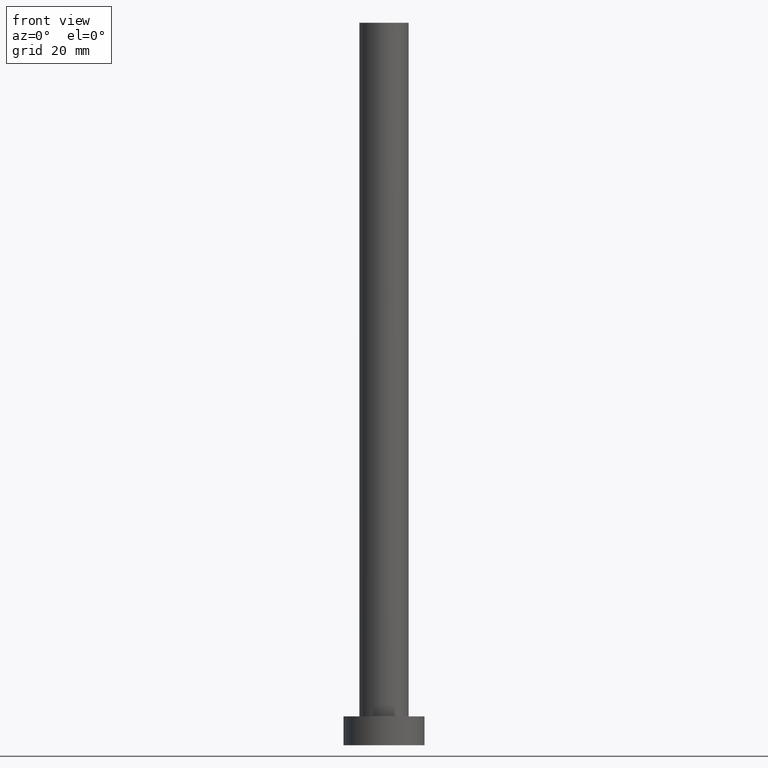
[diagram: clean part render]
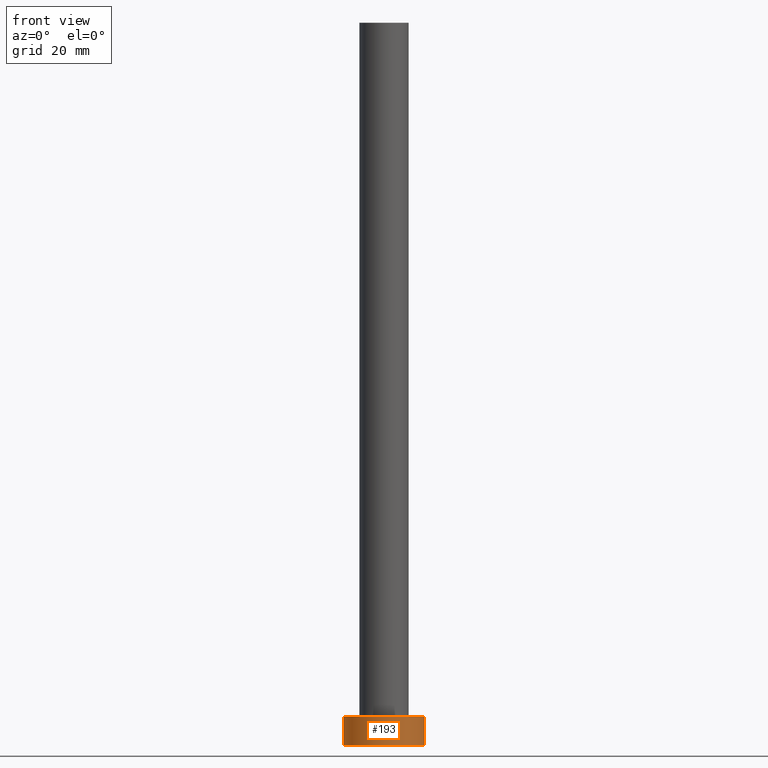
[diagram: same view with one face highlighted and labeled with its STEP entity id]
A machine part, front view. The second image highlights one B-rep face of the part: STEP entity #193.
In plain terms, the highlighted cylindrical surface (partial cylindrical patch) has radius 7 mm, axis along (-0, -0, -1).
Its self-contained STEP definition (entity closure, byte-faithful):
#3 = CYLINDRICAL_SURFACE ( 'NONE', #34, 7.000000000000000000 ) ;
#5 = CARTESIAN_POINT ( 'NONE',  ( 7.000000000000000000, 8.572527594031473190E-16, 5.000000000000000000 ) ) ;
#13 = EDGE_CURVE ( 'NONE', #56, #19, #211, .T. ) ;
#19 = VERTEX_POINT ( 'NONE', #96 ) ;
#23 = FACE_OUTER_BOUND ( 'NONE', #156, .T. ) ;
#34 = AXIS2_PLACEMENT_3D ( 'NONE', #100, #166, #200 ) ;
#42 = ORIENTED_EDGE ( 'NONE', *, *, #250, .F. ) ;
#52 = CARTESIAN_POINT ( 'NONE',  ( 0.000000000000000000, 0.000000000000000000, 0.000000000000000000 ) ) ;
#53 = CARTESIAN_POINT ( 'NONE',  ( -7.000000000000000000, 0.000000000000000000, 5.000000000000000000 ) ) ;
#56 = VERTEX_POINT ( 'NONE', #53 ) ;
#57 = ORIENTED_EDGE ( 'NONE', *, *, #88, .T. ) ;
#58 = DIRECTION ( 'NONE',  ( -0.000000000000000000, -0.000000000000000000, -1.000000000000000000 ) ) ;
#84 = VECTOR ( 'NONE', #58, 1000.000000000000000 ) ;
#88 = EDGE_CURVE ( 'NONE', #91, #233, #111, .T. ) ;
#91 = VERTEX_POINT ( 'NONE', #164 ) ;
#96 = CARTESIAN_POINT ( 'NONE',  ( 7.000000000000000000, 8.572527594031473190E-16, 5.000000000000000000 ) ) ;
#97 = AXIS2_PLACEMENT_3D ( 'NONE', #52, #214, #104 ) ;
#100 = CARTESIAN_POINT ( 'NONE',  ( 0.000000000000000000, 0.000000000000000000, 5.000000000000000000 ) ) ;
#104 = DIRECTION ( 'NONE',  ( 1.000000000000000000, 0.000000000000000000, 0.000000000000000000 ) ) ;
#111 = CIRCLE ( 'NONE', #97, 7.000000000000000000 ) ;
#115 = AXIS2_PLACEMENT_3D ( 'NONE', #231, #154, #117 ) ;
#117 = DIRECTION ( 'NONE',  ( 1.000000000000000000, 0.000000000000000000, 0.000000000000000000 ) ) ;
#118 = ORIENTED_EDGE ( 'NONE', *, *, #13, .F. ) ;
#126 = LINE ( 'NONE', #5, #84 ) ;
#154 = DIRECTION ( 'NONE',  ( 0.000000000000000000, 0.000000000000000000, 1.000000000000000000 ) ) ;
#156 = EDGE_LOOP ( 'NONE', ( #42, #118, #198, #57 ) ) ;
#164 = CARTESIAN_POINT ( 'NONE',  ( -7.000000000000000000, 0.000000000000000000, 0.000000000000000000 ) ) ;
#166 = DIRECTION ( 'NONE',  ( -0.000000000000000000, -0.000000000000000000, -1.000000000000000000 ) ) ;
#168 = VECTOR ( 'NONE', #201, 1000.000000000000000 ) ;
#185 = CARTESIAN_POINT ( 'NONE',  ( -7.000000000000000000, 0.000000000000000000, 5.000000000000000000 ) ) ;
#193 = ADVANCED_FACE ( 'NONE', ( #23 ), #3, .T. ) ;
#198 = ORIENTED_EDGE ( 'NONE', *, *, #213, .T. ) ;
#200 = DIRECTION ( 'NONE',  ( -1.000000000000000000, 0.000000000000000000, 0.000000000000000000 ) ) ;
#201 = DIRECTION ( 'NONE',  ( -0.000000000000000000, -0.000000000000000000, -1.000000000000000000 ) ) ;
#202 = LINE ( 'NONE', #185, #168 ) ;
#211 = CIRCLE ( 'NONE', #115, 7.000000000000000000 ) ;
#213 = EDGE_CURVE ( 'NONE', #56, #91, #202, .T. ) ;
#214 = DIRECTION ( 'NONE',  ( 0.000000000000000000, 0.000000000000000000, 1.000000000000000000 ) ) ;
#231 = CARTESIAN_POINT ( 'NONE',  ( 0.000000000000000000, 0.000000000000000000, 5.000000000000000000 ) ) ;
#233 = VERTEX_POINT ( 'NONE', #243 ) ;
#243 = CARTESIAN_POINT ( 'NONE',  ( 7.000000000000000000, 8.572527594031473190E-16, 0.000000000000000000 ) ) ;
#250 = EDGE_CURVE ( 'NONE', #19, #233, #126, .T. ) ;